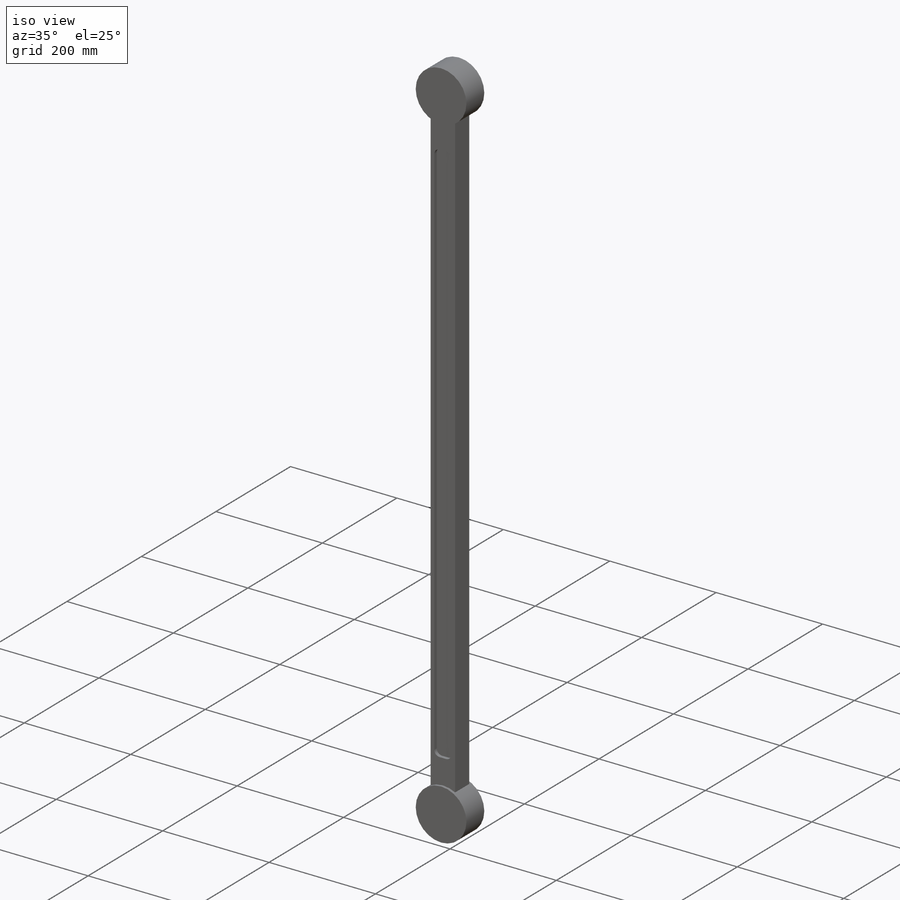
[diagram: iso view]
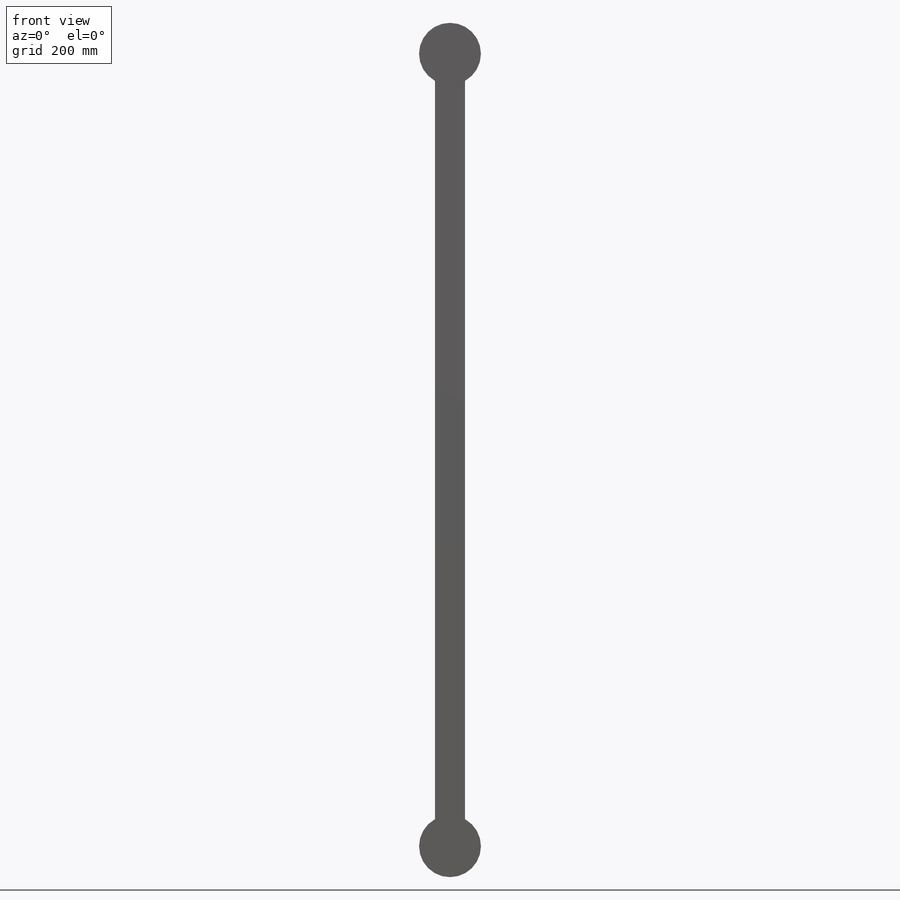
[diagram: front view]
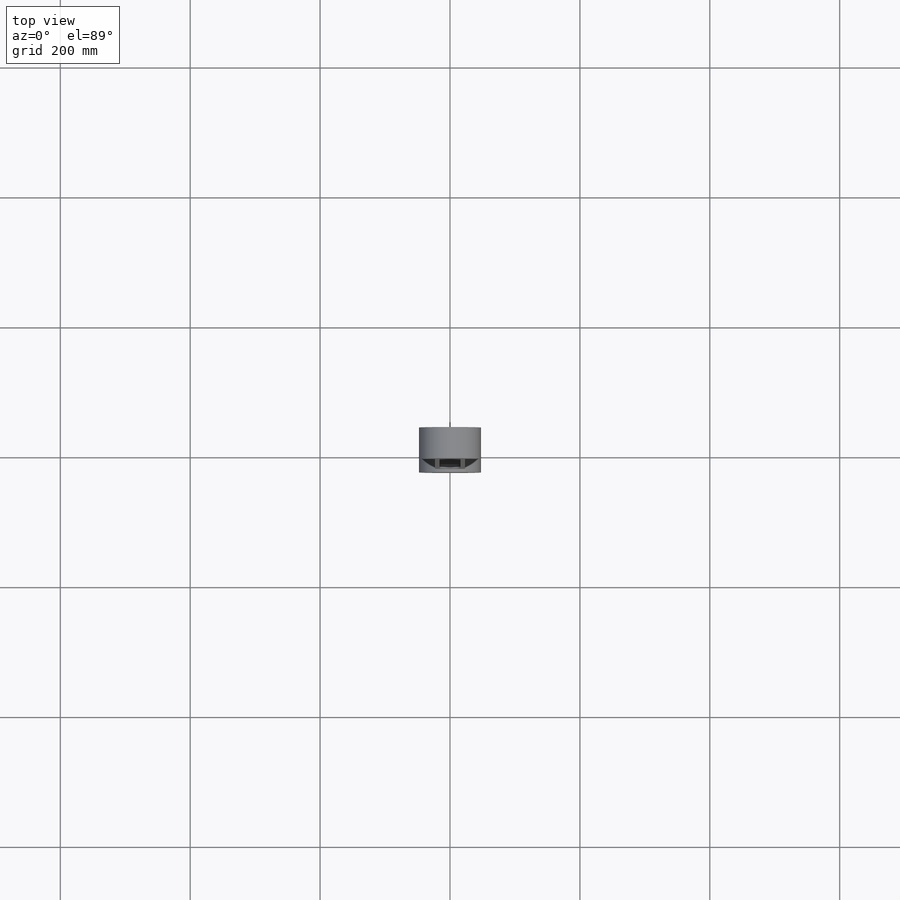
[diagram: top view]
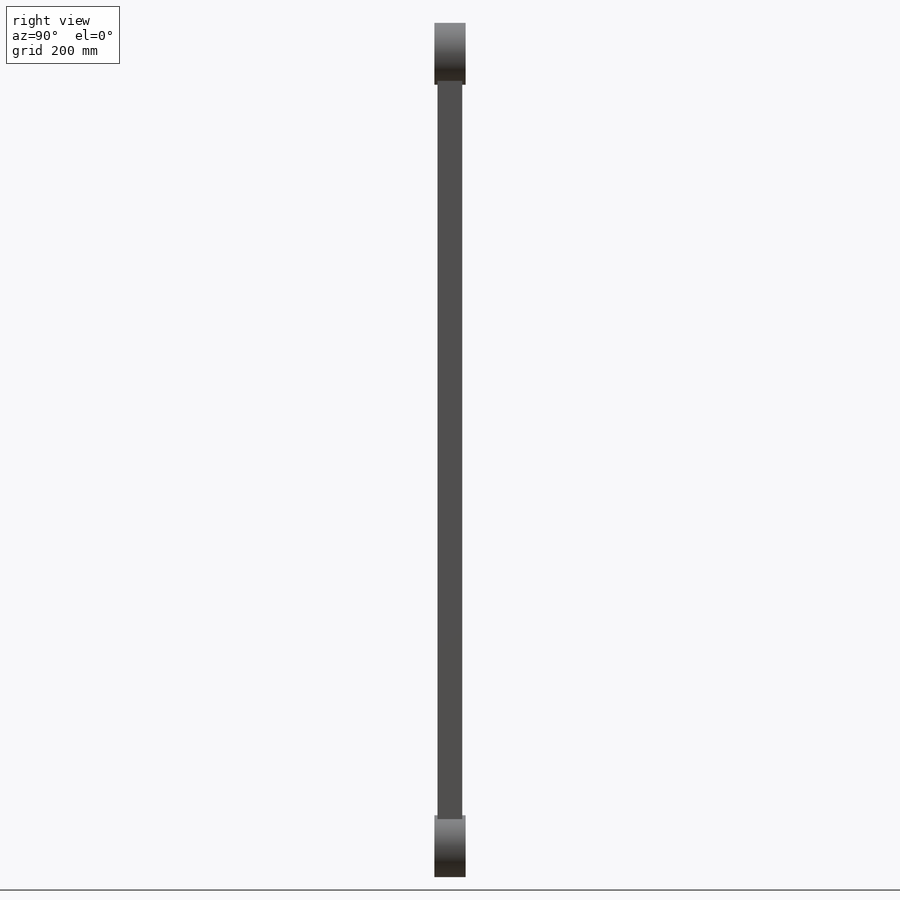
[diagram: right view]
SOLIDWORKS PART (.sldprt)
format: sldprt  version: not decoded by parser v0  size: 222,720 bytes
history: native  units: mm
features: sketch x6, extrude x2, cut_extrude x2, material x1 (+13 scaffold rows collapsed)
feature tree (24):
  scaffold x13  (default folders/planes/origin — collapsed)
  material  "Material <not specified>"
  sketch  "Sketch1"
  sketch  "Sketch2"
  sketch  "Sketch3"
  extrude  "Extrude1"  Depth=19.05mm
  sketch  "Sketch4"  dims[D3=9.652mm D1=7.112mm D2=7.112mm]
  cut_extrude  "Cut-Extrude1"  Depth=6.35mm
  sketch  "Sketch5"  dims[D1=0.0mm]
  cut_extrude  "Cut-Extrude2"  Depth=6.35mm
  sketch  "Sketch6"
  extrude  "Extrude2"  Depth=4.826mm
decode coverage: 6 of 10 modeling features carry decoded parameters
note: suppression state not decoded; provenance and decode notes live in map.json
